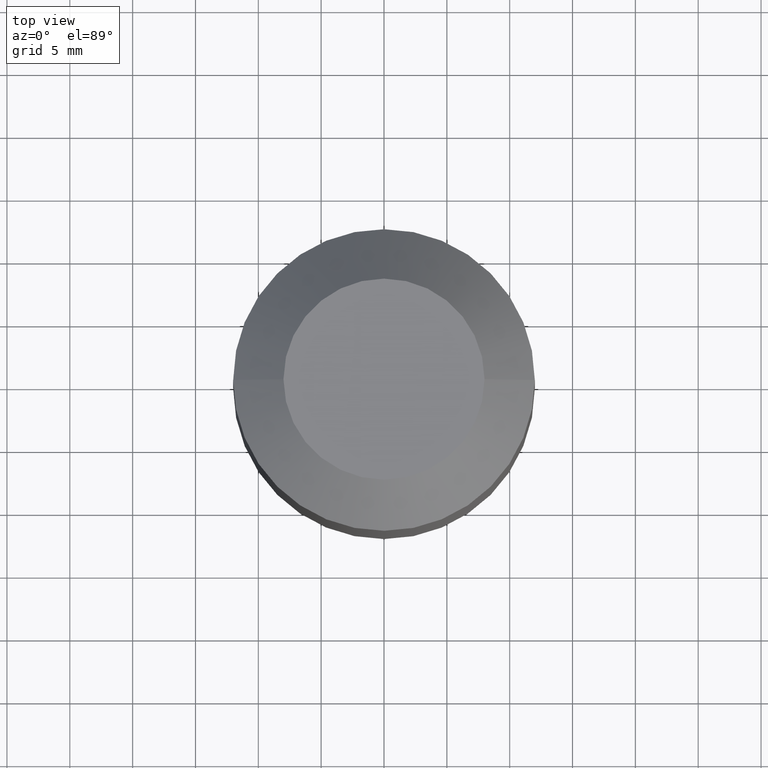
[diagram: clean part render]
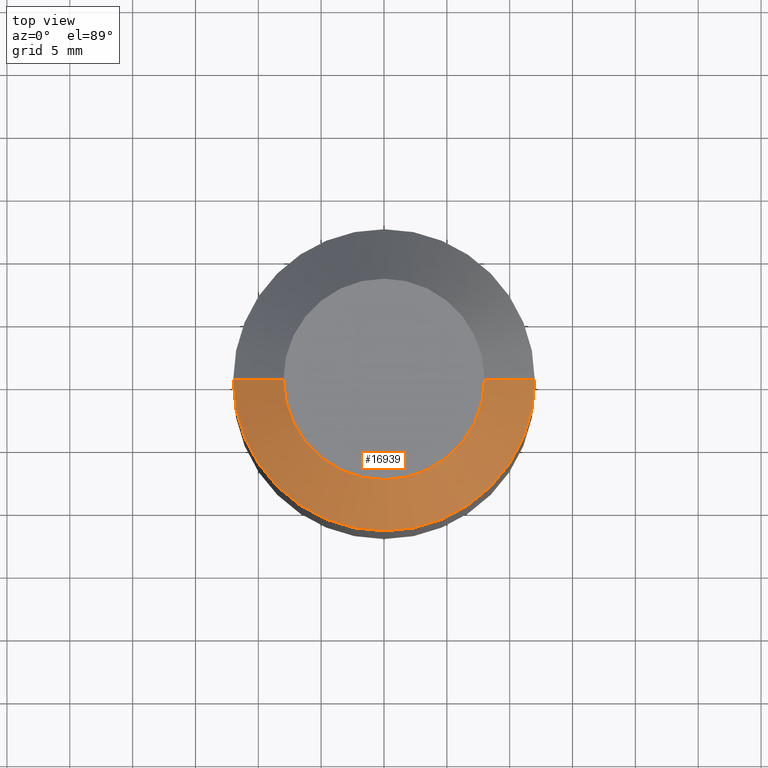
[diagram: same view with one face highlighted and labeled with its STEP entity id]
A machine part, top view. The second image highlights one B-rep face of the part: STEP entity #16939.
In plain terms, the highlighted conical surface has half-angle 45 deg.
Its self-contained STEP definition (entity closure, byte-faithful):
#1347 = LINE ( 'NONE', #13887, #3776 ) ;
#2491 = FACE_OUTER_BOUND ( 'NONE', #6902, .T. ) ;
#2667 = CIRCLE ( 'NONE', #17850, 8.000000000000000000 ) ;
#3053 = EDGE_CURVE ( 'NONE', #8422, #5971, #1347, .T. ) ;
#3067 = CIRCLE ( 'NONE', #21203, 12.00000000000000000 ) ;
#3113 = VECTOR ( 'NONE', #19112, 1000.000000000000114 ) ;
#3413 = EDGE_CURVE ( 'NONE', #8422, #7224, #2667, .T. ) ;
#3707 = DIRECTION ( 'NONE',  ( 1.000000000000000000, 0.000000000000000000, 0.000000000000000000 ) ) ;
#3736 = AXIS2_PLACEMENT_3D ( 'NONE', #16647, #9572, #21424 ) ;
#3776 = VECTOR ( 'NONE', #10079, 1000.000000000000114 ) ;
#5104 = CARTESIAN_POINT ( 'NONE',  ( 11.99999999999998579, 1.469576158976822172E-15, 43.25000000000000000 ) ) ;
#5800 = CARTESIAN_POINT ( 'NONE',  ( 0.000000000000000000, 0.000000000000000000, 47.25000000000000000 ) ) ;
#5971 = VERTEX_POINT ( 'NONE', #11803 ) ;
#6780 = EDGE_CURVE ( 'NONE', #7224, #12380, #13899, .T. ) ;
#6902 = EDGE_LOOP ( 'NONE', ( #19793, #11065, #13802, #18034 ) ) ;
#7224 = VERTEX_POINT ( 'NONE', #12478 ) ;
#8422 = VERTEX_POINT ( 'NONE', #17290 ) ;
#8492 = EDGE_CURVE ( 'NONE', #12380, #5971, #3067, .T. ) ;
#9022 = CARTESIAN_POINT ( 'NONE',  ( 8.000000000000000000, 9.797174393178825657E-16, 47.25000000000000000 ) ) ;
#9572 = DIRECTION ( 'NONE',  ( 0.000000000000000000, 0.000000000000000000, -1.000000000000000000 ) ) ;
#9678 = CONICAL_SURFACE ( 'NONE', #3736, 8.000000000000000000, 0.7853981633974461696 ) ;
#10079 = DIRECTION ( 'NONE',  ( -0.7071067811865460184, 0.000000000000000000, -0.7071067811865489050 ) ) ;
#10680 = DIRECTION ( 'NONE',  ( 1.000000000000000000, 0.000000000000000000, 0.000000000000000000 ) ) ;
#11065 = ORIENTED_EDGE ( 'NONE', *, *, #3413, .F. ) ;
#11803 = CARTESIAN_POINT ( 'NONE',  ( -11.99999999999998579, 0.000000000000000000, 43.25000000000000000 ) ) ;
#12380 = VERTEX_POINT ( 'NONE', #5104 ) ;
#12478 = CARTESIAN_POINT ( 'NONE',  ( 8.000000000000000000, 1.224646799147352468E-15, 47.25000000000000000 ) ) ;
#13802 = ORIENTED_EDGE ( 'NONE', *, *, #3053, .T. ) ;
#13887 = CARTESIAN_POINT ( 'NONE',  ( -8.000000000000000000, 0.000000000000000000, 47.25000000000000000 ) ) ;
#13899 = LINE ( 'NONE', #9022, #3113 ) ;
#16647 = CARTESIAN_POINT ( 'NONE',  ( 0.000000000000000000, 0.000000000000000000, 47.25000000000000000 ) ) ;
#16939 = ADVANCED_FACE ( 'NONE', ( #2491 ), #9678, .T. ) ;
#17290 = CARTESIAN_POINT ( 'NONE',  ( -8.000000000000000000, 0.000000000000000000, 47.25000000000000000 ) ) ;
#17850 = AXIS2_PLACEMENT_3D ( 'NONE', #5800, #19931, #3707 ) ;
#17864 = DIRECTION ( 'NONE',  ( 0.000000000000000000, 0.000000000000000000, -1.000000000000000000 ) ) ;
#18034 = ORIENTED_EDGE ( 'NONE', *, *, #8492, .F. ) ;
#19112 = DIRECTION ( 'NONE',  ( 0.7071067811865460184, 8.659560562354913137E-17, -0.7071067811865489050 ) ) ;
#19793 = ORIENTED_EDGE ( 'NONE', *, *, #6780, .F. ) ;
#19931 = DIRECTION ( 'NONE',  ( 0.000000000000000000, 0.000000000000000000, 1.000000000000000000 ) ) ;
#21095 = CARTESIAN_POINT ( 'NONE',  ( 0.000000000000000000, 0.000000000000000000, 43.25000000000000000 ) ) ;
#21203 = AXIS2_PLACEMENT_3D ( 'NONE', #21095, #17864, #10680 ) ;
#21424 = DIRECTION ( 'NONE',  ( -1.000000000000000000, 0.000000000000000000, 0.000000000000000000 ) ) ;